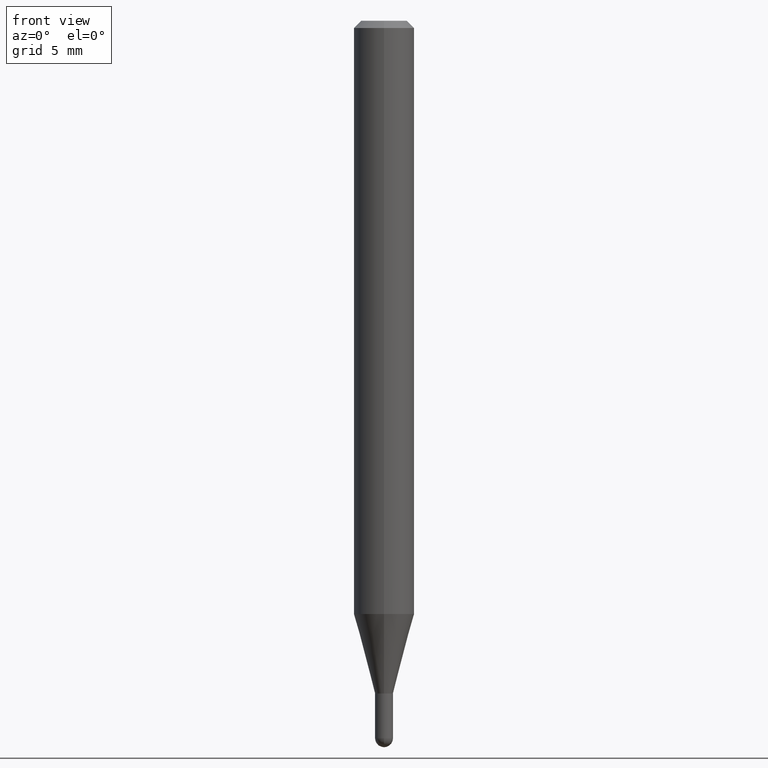
[diagram: clean part render]
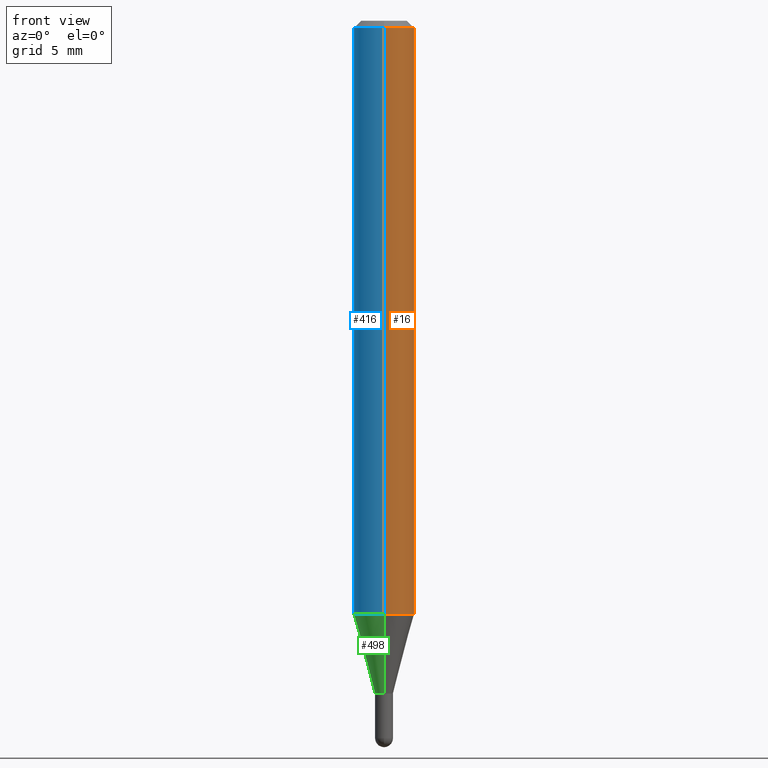
[diagram: same view with three faces highlighted in distinct colors, each labeled with its STEP entity id]
A machine part, front view with three faces highlighted in distinct colors.
Their STEP definitions:

[orange] entity #16 — the highlighted cylindrical surface (edge-blend (fillet) strip) has radius 1.5875 mm, axis along (-0, 0, 1).
#16 = ADVANCED_FACE ( 'NONE', ( #413 ), #471, .T. ) ;
#43 = ORIENTED_EDGE ( 'NONE', *, *, #444, .F. ) ;
#55 = VERTEX_POINT ( 'NONE', #187 ) ;
#57 = CARTESIAN_POINT ( 'NONE',  ( -4.364351673553916201E-16, -0.06250000000000000000, 2.182190197436169546E-16 ) ) ;
#75 = CARTESIAN_POINT ( 'NONE',  ( 3.668179142090381947E-31, -5.237256473846829838E-17, -0.01500000000000006710 ) ) ;
#77 = EDGE_CURVE ( 'NONE', #55, #101, #440, .T. ) ;
#89 = CARTESIAN_POINT ( 'NONE',  ( -4.364351673553617913E-16, -0.06250000000000428824, -1.224789764466973629 ) ) ;
#101 = VERTEX_POINT ( 'NONE', #114 ) ;
#114 = CARTESIAN_POINT ( 'NONE',  ( 4.440892098500927901E-16, 0.06249999999999995837, -0.01500000000000028394 ) ) ;
#127 = DIRECTION ( 'NONE',  ( -6.982962677686265922E-15, -1.000000000000000000, 3.491504315897871274E-15 ) ) ;
#139 = LINE ( 'NONE', #57, #243 ) ;
#158 = EDGE_CURVE ( 'NONE', #479, #101, #358, .T. ) ;
#174 = EDGE_LOOP ( 'NONE', ( #207, #496, #488, #43 ) ) ;
#177 = AXIS2_PLACEMENT_3D ( 'NONE', #75, #447, #300 ) ;
#187 = CARTESIAN_POINT ( 'NONE',  ( -4.364351673553912750E-16, -0.06250000000000005551, -0.01499999999999984852 ) ) ;
#190 = DIRECTION ( 'NONE',  ( -2.445452761393577128E-29, 3.491504315897871274E-15, 1.000000000000000000 ) ) ;
#192 = CIRCLE ( 'NONE', #288, 0.06250000000000000000 ) ;
#207 = ORIENTED_EDGE ( 'NONE', *, *, #279, .T. ) ;
#216 = DIRECTION ( 'NONE',  ( -2.445452761393576848E-29, 3.491504315897871274E-15, 1.000000000000000000 ) ) ;
#243 = VECTOR ( 'NONE', #216, 39.37007874015748143 ) ;
#244 = CARTESIAN_POINT ( 'NONE',  ( 0.000000000000000000, 0.000000000000000000, 0.000000000000000000 ) ) ;
#279 = EDGE_CURVE ( 'NONE', #476, #479, #192, .T. ) ;
#288 = AXIS2_PLACEMENT_3D ( 'NONE', #369, #291, #463 ) ;
#291 = DIRECTION ( 'NONE',  ( -2.445452761393577128E-29, 3.491504315897871274E-15, 1.000000000000000000 ) ) ;
#292 = CARTESIAN_POINT ( 'NONE',  ( 4.440892098500923957E-16, 0.06249999999999571176, -1.224789764466974074 ) ) ;
#300 = DIRECTION ( 'NONE',  ( -6.982962677686265922E-15, -1.000000000000000000, 3.483106191921935554E-15 ) ) ;
#308 = CARTESIAN_POINT ( 'NONE',  ( 4.440892098500625669E-16, 0.06250000000000000000, -2.182190197436169546E-16 ) ) ;
#332 = VECTOR ( 'NONE', #461, 39.37007874015748143 ) ;
#358 = LINE ( 'NONE', #308, #332 ) ;
#369 = CARTESIAN_POINT ( 'NONE',  ( 2.995165511642350382E-29, -4.276358748703976634E-15, -1.224789764466973851 ) ) ;
#413 = FACE_OUTER_BOUND ( 'NONE', #174, .T. ) ;
#440 = CIRCLE ( 'NONE', #177, 0.06250000000000000000 ) ;
#444 = EDGE_CURVE ( 'NONE', #476, #55, #139, .T. ) ;
#447 = DIRECTION ( 'NONE',  ( -2.445452761393577128E-29, 3.491504315897871274E-15, 1.000000000000000000 ) ) ;
#461 = DIRECTION ( 'NONE',  ( -2.445452761393576848E-29, 3.491504315897871274E-15, 1.000000000000000000 ) ) ;
#463 = DIRECTION ( 'NONE',  ( -6.982962677686265922E-15, -1.000000000000000000, 4.370956789862821150E-15 ) ) ;
#471 = CYLINDRICAL_SURFACE ( 'NONE', #502, 0.06250000000000000000 ) ;
#476 = VERTEX_POINT ( 'NONE', #89 ) ;
#479 = VERTEX_POINT ( 'NONE', #292 ) ;
#488 = ORIENTED_EDGE ( 'NONE', *, *, #77, .F. ) ;
#496 = ORIENTED_EDGE ( 'NONE', *, *, #158, .T. ) ;
#502 = AXIS2_PLACEMENT_3D ( 'NONE', #244, #190, #127 ) ;

[blue] entity #416 — the highlighted cylindrical surface (edge-blend (fillet) strip) has radius 1.5875 mm, axis along (-0, 0, 1).
#35 = DIRECTION ( 'NONE',  ( -6.982962677686265922E-15, -1.000000000000000000, 4.370956789862821150E-15 ) ) ;
#55 = VERTEX_POINT ( 'NONE', #187 ) ;
#57 = CARTESIAN_POINT ( 'NONE',  ( -4.364351673553916201E-16, -0.06250000000000000000, 2.182190197436169546E-16 ) ) ;
#74 = DIRECTION ( 'NONE',  ( -2.445452761393577128E-29, 3.491504315897871274E-15, 1.000000000000000000 ) ) ;
#86 = ORIENTED_EDGE ( 'NONE', *, *, #444, .T. ) ;
#89 = CARTESIAN_POINT ( 'NONE',  ( -4.364351673553617913E-16, -0.06250000000000428824, -1.224789764466973629 ) ) ;
#101 = VERTEX_POINT ( 'NONE', #114 ) ;
#105 = CARTESIAN_POINT ( 'NONE',  ( 3.668179142090381947E-31, -5.237256473846829838E-17, -0.01500000000000006710 ) ) ;
#114 = CARTESIAN_POINT ( 'NONE',  ( 4.440892098500927901E-16, 0.06249999999999995837, -0.01500000000000028394 ) ) ;
#116 = EDGE_CURVE ( 'NONE', #479, #476, #433, .T. ) ;
#119 = DIRECTION ( 'NONE',  ( -2.445452761393577128E-29, 3.491504315897871274E-15, 1.000000000000000000 ) ) ;
#133 = FACE_OUTER_BOUND ( 'NONE', #284, .T. ) ;
#139 = LINE ( 'NONE', #57, #243 ) ;
#158 = EDGE_CURVE ( 'NONE', #479, #101, #358, .T. ) ;
#161 = CYLINDRICAL_SURFACE ( 'NONE', #334, 0.06250000000000000000 ) ;
#187 = CARTESIAN_POINT ( 'NONE',  ( -4.364351673553912750E-16, -0.06250000000000005551, -0.01499999999999984852 ) ) ;
#208 = DIRECTION ( 'NONE',  ( -2.445452761393577128E-29, 3.491504315897871274E-15, 1.000000000000000000 ) ) ;
#214 = CARTESIAN_POINT ( 'NONE',  ( 0.000000000000000000, 0.000000000000000000, 0.000000000000000000 ) ) ;
#216 = DIRECTION ( 'NONE',  ( -2.445452761393576848E-29, 3.491504315897871274E-15, 1.000000000000000000 ) ) ;
#221 = ORIENTED_EDGE ( 'NONE', *, *, #404, .F. ) ;
#243 = VECTOR ( 'NONE', #216, 39.37007874015748143 ) ;
#277 = DIRECTION ( 'NONE',  ( -6.982962677686265922E-15, -1.000000000000000000, 3.483106191921935554E-15 ) ) ;
#284 = EDGE_LOOP ( 'NONE', ( #402, #344, #86, #221 ) ) ;
#292 = CARTESIAN_POINT ( 'NONE',  ( 4.440892098500923957E-16, 0.06249999999999571176, -1.224789764466974074 ) ) ;
#308 = CARTESIAN_POINT ( 'NONE',  ( 4.440892098500625669E-16, 0.06250000000000000000, -2.182190197436169546E-16 ) ) ;
#332 = VECTOR ( 'NONE', #461, 39.37007874015748143 ) ;
#334 = AXIS2_PLACEMENT_3D ( 'NONE', #214, #208, #484 ) ;
#344 = ORIENTED_EDGE ( 'NONE', *, *, #116, .T. ) ;
#358 = LINE ( 'NONE', #308, #332 ) ;
#371 = CIRCLE ( 'NONE', #505, 0.06250000000000000000 ) ;
#402 = ORIENTED_EDGE ( 'NONE', *, *, #158, .F. ) ;
#404 = EDGE_CURVE ( 'NONE', #101, #55, #371, .T. ) ;
#416 = ADVANCED_FACE ( 'NONE', ( #133 ), #161, .T. ) ;
#426 = CARTESIAN_POINT ( 'NONE',  ( 2.995165511642350382E-29, -4.276358748703976634E-15, -1.224789764466973851 ) ) ;
#433 = CIRCLE ( 'NONE', #503, 0.06250000000000000000 ) ;
#444 = EDGE_CURVE ( 'NONE', #476, #55, #139, .T. ) ;
#461 = DIRECTION ( 'NONE',  ( -2.445452761393576848E-29, 3.491504315897871274E-15, 1.000000000000000000 ) ) ;
#476 = VERTEX_POINT ( 'NONE', #89 ) ;
#479 = VERTEX_POINT ( 'NONE', #292 ) ;
#484 = DIRECTION ( 'NONE',  ( -6.982962677686265922E-15, -1.000000000000000000, 3.491504315897871274E-15 ) ) ;
#503 = AXIS2_PLACEMENT_3D ( 'NONE', #426, #74, #35 ) ;
#505 = AXIS2_PLACEMENT_3D ( 'NONE', #105, #119, #277 ) ;

[green] entity #498 — the highlighted conical surface has half-angle 15 deg.
#12 = ORIENTED_EDGE ( 'NONE', *, *, #116, .F. ) ;
#22 = EDGE_CURVE ( 'NONE', #299, #479, #287, .T. ) ;
#27 = VERTEX_POINT ( 'NONE', #228 ) ;
#35 = DIRECTION ( 'NONE',  ( -6.982962677686265922E-15, -1.000000000000000000, 4.370956789862821150E-15 ) ) ;
#49 = CARTESIAN_POINT ( 'NONE',  ( 1.314504061156500084E-16, 0.01849999999999480185, -1.389000000000000234 ) ) ;
#60 = CIRCLE ( 'NONE', #268, 0.01849999999999965214 ) ;
#62 = CONICAL_SURFACE ( 'NONE', #113, 0.01849999999999965214, 0.2617993877991581231 ) ;
#69 = DIRECTION ( 'NONE',  ( 1.839019923739654352E-15, 0.2588190451025325634, 0.9659258262890650926 ) ) ;
#73 = DIRECTION ( 'NONE',  ( -6.982962677686265133E-15, -1.000000000000000000, 0.000000000000000000 ) ) ;
#74 = DIRECTION ( 'NONE',  ( -2.445452761393577128E-29, 3.491504315897871274E-15, 1.000000000000000000 ) ) ;
#78 = LINE ( 'NONE', #327, #88 ) ;
#80 = ORIENTED_EDGE ( 'NONE', *, *, #22, .F. ) ;
#88 = VECTOR ( 'NONE', #510, 39.37007874015748143 ) ;
#89 = CARTESIAN_POINT ( 'NONE',  ( -4.364351673553617913E-16, -0.06250000000000428824, -1.224789764466973629 ) ) ;
#113 = AXIS2_PLACEMENT_3D ( 'NONE', #182, #146, #73 ) ;
#116 = EDGE_CURVE ( 'NONE', #479, #476, #433, .T. ) ;
#124 = EDGE_LOOP ( 'NONE', ( #80, #170, #370, #12 ) ) ;
#146 = DIRECTION ( 'NONE',  ( -2.445452761393577128E-29, 3.491504315897871274E-15, 1.000000000000000000 ) ) ;
#170 = ORIENTED_EDGE ( 'NONE', *, *, #329, .T. ) ;
#182 = CARTESIAN_POINT ( 'NONE',  ( 3.396733885575678864E-29, -4.849699494782143429E-15, -1.389000000000000234 ) ) ;
#198 = FACE_OUTER_BOUND ( 'NONE', #124, .T. ) ;
#228 = CARTESIAN_POINT ( 'NONE',  ( -1.291848095371595124E-16, -0.01850000000000450243, -1.389000000000000234 ) ) ;
#268 = AXIS2_PLACEMENT_3D ( 'NONE', #472, #394, #275 ) ;
#275 = DIRECTION ( 'NONE',  ( -6.982962677686265133E-15, -1.000000000000000000, 0.000000000000000000 ) ) ;
#287 = LINE ( 'NONE', #49, #326 ) ;
#292 = CARTESIAN_POINT ( 'NONE',  ( 4.440892098500923957E-16, 0.06249999999999571176, -1.224789764466974074 ) ) ;
#299 = VERTEX_POINT ( 'NONE', #321 ) ;
#303 = EDGE_CURVE ( 'NONE', #27, #476, #78, .T. ) ;
#321 = CARTESIAN_POINT ( 'NONE',  ( 2.877698079828713992E-16, 0.01849999999999480185, -1.389000000000000234 ) ) ;
#326 = VECTOR ( 'NONE', #69, 39.37007874015748143 ) ;
#327 = CARTESIAN_POINT ( 'NONE',  ( -1.291848095371595124E-16, -0.01850000000000450243, -1.389000000000000234 ) ) ;
#329 = EDGE_CURVE ( 'NONE', #299, #27, #60, .T. ) ;
#370 = ORIENTED_EDGE ( 'NONE', *, *, #303, .T. ) ;
#394 = DIRECTION ( 'NONE',  ( -2.445452761393577128E-29, 3.491504315897871274E-15, 1.000000000000000000 ) ) ;
#426 = CARTESIAN_POINT ( 'NONE',  ( 2.995165511642350382E-29, -4.276358748703976634E-15, -1.224789764466973851 ) ) ;
#433 = CIRCLE ( 'NONE', #503, 0.06250000000000000000 ) ;
#472 = CARTESIAN_POINT ( 'NONE',  ( 3.396733885575678864E-29, -4.849699494782143429E-15, -1.389000000000000234 ) ) ;
#476 = VERTEX_POINT ( 'NONE', #89 ) ;
#479 = VERTEX_POINT ( 'NONE', #292 ) ;
#498 = ADVANCED_FACE ( 'NONE', ( #198 ), #62, .T. ) ;
#503 = AXIS2_PLACEMENT_3D ( 'NONE', #426, #74, #35 ) ;
#510 = DIRECTION ( 'NONE',  ( -1.807323732225383387E-15, -0.2588190451025257910, 0.9659258262890669799 ) ) ;